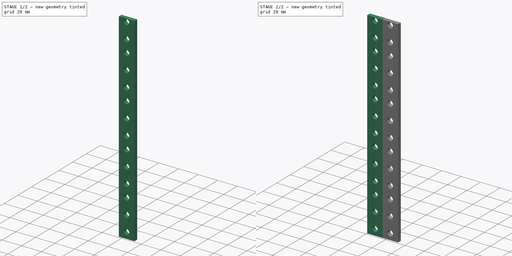
[diagram: build sequence overview — one tinted view per stage of 2, left to right]
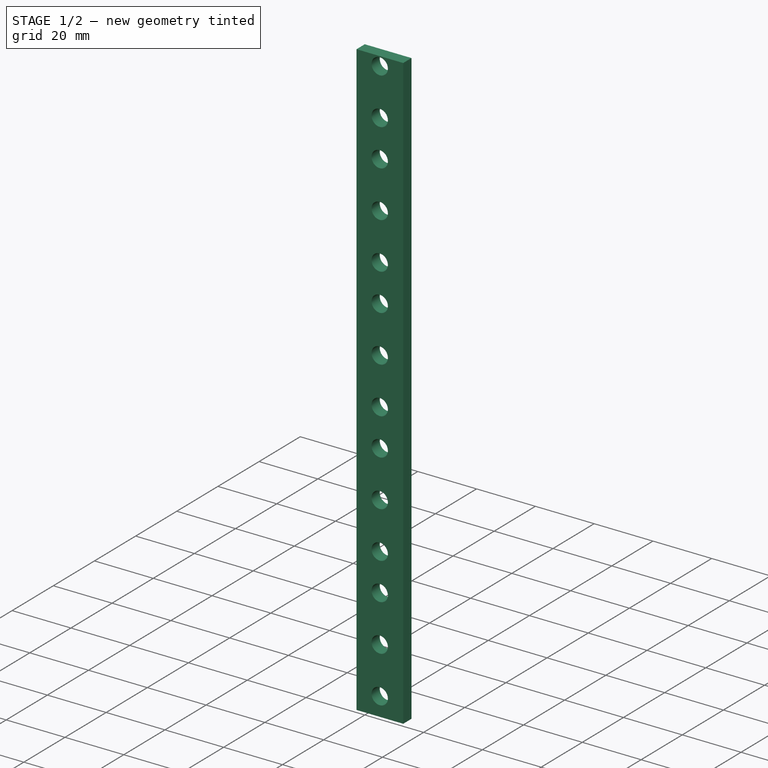
[diagram: stage 1 of 2 — iso view after this stage's code; geometry added in this stage tinted green]
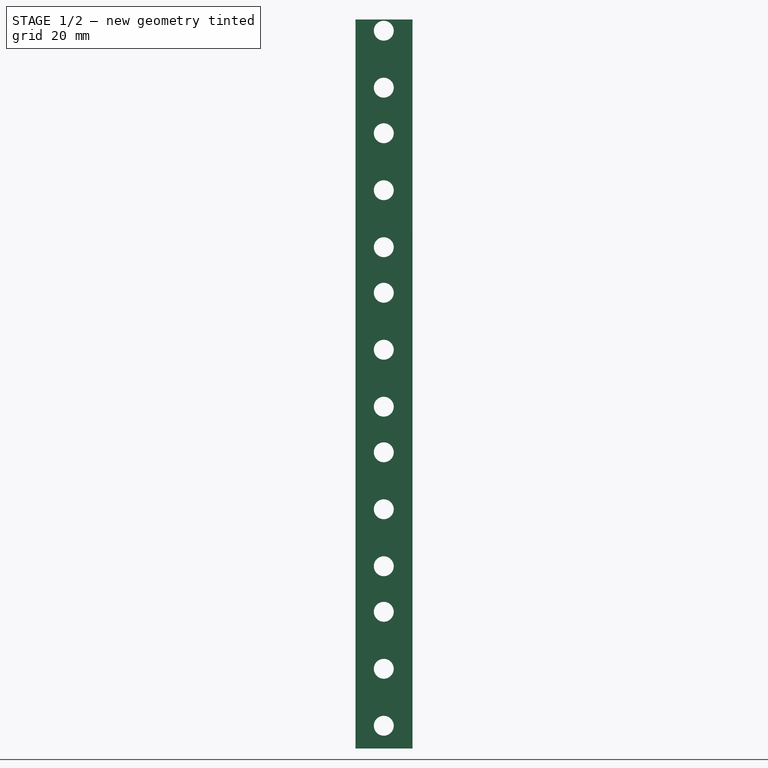
[diagram: stage 1 of 2 — front view after this stage's code; geometry added in this stage tinted green]
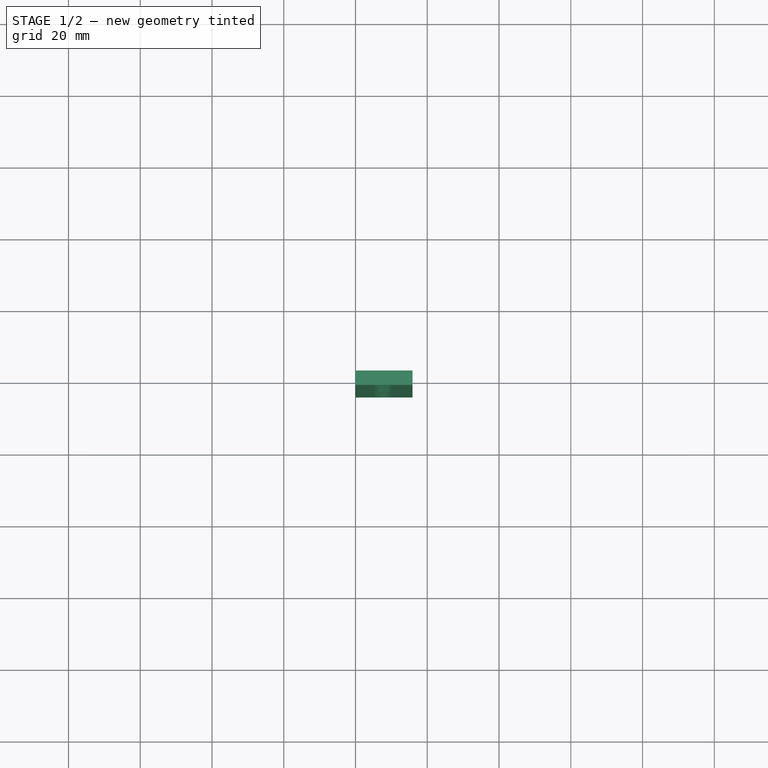
[diagram: stage 1 of 2 — top view after this stage's code; geometry added in this stage tinted green]
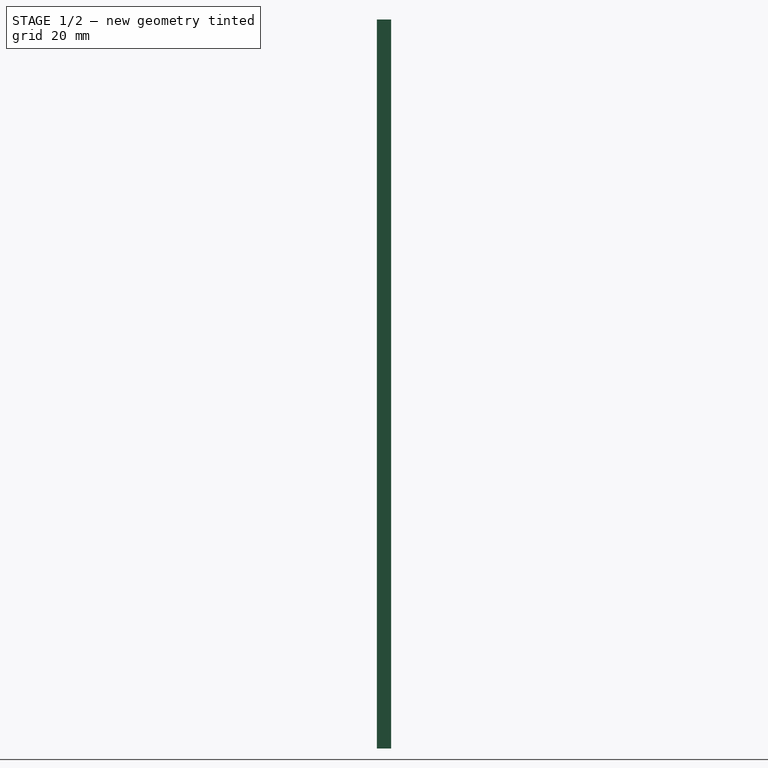
[diagram: stage 1 of 2 — right view after this stage's code; geometry added in this stage tinted green]
FCSTD DOCUMENT  (FreeCAD 0.19R14555 (Git shallow))
Label: 4.5U_DoubleRail_v0
License: All rights reserved
LicenseURL: http://en.wikipedia.org/wiki/All_rights_reserved
objects: Sketcher::SketchObject×2, PartDesign::Pad×2, PartDesign::Body×1
note: 7 computed .brp shape members not serialized (recipe doc carries the construction recipe); baked Part::Feature solids carry a one-line shape summary decoded from their .brp

FEATURE [Sketcher::SketchObject] Sketch
  FullyConstrained = true
  MapMode = 5
  Placement = pos=(0,0,0) rot=(1,0,0;1.5708rad)
  Support = -> [XZ_Plane]
  sketch-geometry (18):
    g0: LineSegment StartX=0 StartY=0 StartZ=0 EndX=15.875 EndY=0 EndZ=0
    g1: LineSegment StartX=15.875 StartY=0 StartZ=0 EndX=15.875 EndY=203.2 EndZ=0
    g2: LineSegment StartX=15.875 StartY=203.2 StartZ=0 EndX=0 EndY=203.2 EndZ=0
    g3: LineSegment StartX=0 StartY=203.2 StartZ=0 EndX=0 EndY=0 EndZ=0
    g4: Circle CenterX=7.874 CenterY=6.35 CenterZ=0 NormalX=0 NormalY=0 NormalZ=1 AngleXU=0 Radius=2.775
    g5: Circle CenterX=7.874 CenterY=22.23 CenterZ=0 NormalX=0 NormalY=0 NormalZ=1 AngleXU=0 Radius=2.775
    g6: Circle CenterX=7.874 CenterY=38.11 CenterZ=0 NormalX=0 NormalY=0 NormalZ=1 AngleXU=0 Radius=2.775
    g7: Circle CenterX=7.874 CenterY=50.81 CenterZ=0 NormalX=0 NormalY=0 NormalZ=1 AngleXU=0 Radius=2.775
    g8: Circle CenterX=7.874 CenterY=66.69 CenterZ=0 NormalX=0 NormalY=0 NormalZ=1 AngleXU=0 Radius=2.775
    g9: Circle CenterX=7.874 CenterY=82.57 CenterZ=0 NormalX=0 NormalY=0 NormalZ=1 AngleXU=0 Radius=2.775
    g10: Circle CenterX=7.874 CenterY=95.27 CenterZ=0 NormalX=0 NormalY=0 NormalZ=1 AngleXU=0 Radius=2.775
    g11: Circle CenterX=7.874 CenterY=111.15 CenterZ=0 NormalX=0 NormalY=0 NormalZ=1 AngleXU=0 Radius=2.775
    g12: Circle CenterX=7.874 CenterY=127.03 CenterZ=0 NormalX=0 NormalY=0 NormalZ=1 AngleXU=0 Radius=2.775
    g13: Circle CenterX=7.874 CenterY=139.73 CenterZ=0 NormalX=0 NormalY=0 NormalZ=1 AngleXU=0 Radius=2.775
    g14: Circle CenterX=7.874 CenterY=155.61 CenterZ=0 NormalX=0 NormalY=0 NormalZ=1 AngleXU=0 Radius=2.775
    g15: Circle CenterX=7.874 CenterY=171.49 CenterZ=0 NormalX=0 NormalY=0 NormalZ=1 AngleXU=0 Radius=2.775
    g16: Circle CenterX=7.874 CenterY=184.19 CenterZ=0 NormalX=0 NormalY=0 NormalZ=1 AngleXU=0 Radius=2.775
    g17: Circle CenterX=7.874 CenterY=200.065 CenterZ=0 NormalX=0 NormalY=0 NormalZ=1 AngleXU=0 Radius=2.775
  constraints (53):
    c: Coincident(g0,g1)
    c: Coincident(g1,g2)
    c: Coincident(g2,g3)
    c: Coincident(g3,g0)
    c: Horizontal(g0)
    c: Horizontal(g2)
    c: Vertical(g1)
    c: Vertical(g3)
    c: Coincident(g0,g-1)
    c: DistanceX(g2,g2) = 15.875
    c: DistanceY(g3,g3) = 203.2
    c: Diameter(g4) = 5.55
    c: DistanceX(g0,g4) = 7.874
    c: DistanceY(g0,g4) = 6.35
    c: Equal(g4,g5) = 5.55
    c: Vertical(g5,g4)
    c: DistanceY(g4,g5) = 15.88
    c: Vertical(g6,g5)
    c: DistanceY(g5,g6) = 15.88
    c: Diameter(g6) = 5.55
    c: Equal(g4,g7) = 5.55
    c: Equal(g7,g8) = 5.55
    c: Vertical(g8,g7)
    c: DistanceY(g7,g8) = 15.88
    c: Vertical(g9,g8)
    c: DistanceY(g8,g9) = 15.88
    c: Equal(g6,g9) = 5.55
    c: DistanceY(g6,g7) = 12.7
    c: Vertical(g6,g7)
    c: Equal(g4,g10) = 5.55
    c: Equal(g10,g11) = 5.55
    c: Vertical(g11,g10)
    c: DistanceY(g10,g11) = 15.88
    c: Vertical(g12,g11)
    c: DistanceY(g11,g12) = 15.88
    c: Equal(g6,g12) = 5.55
    c: Equal(g10,g13) = 5.55
    c: Equal(g13,g14) = 5.55
    c: Vertical(g14,g13)
    c: DistanceY(g13,g14) = 15.88
    c: Vertical(g15,g14)
    c: DistanceY(g14,g15) = 15.88
    c: Equal(g12,g15) = 5.55
    c: DistanceY(g12,g13) = 12.7
    c: Vertical(g12,g13)
    c: DistanceY(g9,g10) = 12.7
    c: Vertical(g9,g10)
    c: Vertical(g15,g16)
    c: DistanceY(g15,g16) = 12.7
    c: Vertical(g16,g17)
    c: DistanceY(g16,g17) = 15.875
    c: Diameter(g16) = 5.55
    c: Diameter(g17) = 5.55
FEATURE [Sketcher::SketchObject] MirroredSketch
  FullyConstrained = false
  Placement = pos=(0,0,0) rot=(1,0,0;1.5708rad)
  sketch-geometry (18):
    g0: LineSegment StartX=0 StartY=0 StartZ=0 EndX=-15.875 EndY=0 EndZ=0
    g1: LineSegment StartX=-15.875 StartY=0 StartZ=0 EndX=-15.875 EndY=203.2 EndZ=0
    g2: LineSegment StartX=-15.875 StartY=203.2 StartZ=0 EndX=0 EndY=203.2 EndZ=0
    g3: LineSegment StartX=0 StartY=203.2 StartZ=0 EndX=0 EndY=0 EndZ=0
    g4: Circle CenterX=-7.874 CenterY=6.35 CenterZ=0 NormalX=0 NormalY=0 NormalZ=1 AngleXU=0 Radius=2.775
    g5: Circle CenterX=-7.874 CenterY=22.23 CenterZ=0 NormalX=0 NormalY=0 NormalZ=1 AngleXU=0 Radius=2.775
    g6: Circle CenterX=-7.874 CenterY=38.11 CenterZ=0 NormalX=0 NormalY=0 NormalZ=1 AngleXU=0 Radius=2.775
    g7: Circle CenterX=-7.874 CenterY=50.81 CenterZ=0 NormalX=0 NormalY=0 NormalZ=1 AngleXU=0 Radius=2.775
    g8: Circle CenterX=-7.874 CenterY=66.69 CenterZ=0 NormalX=0 NormalY=0 NormalZ=1 AngleXU=0 Radius=2.775
    g9: Circle CenterX=-7.874 CenterY=82.57 CenterZ=0 NormalX=0 NormalY=0 NormalZ=1 AngleXU=0 Radius=2.775
    g10: Circle CenterX=-7.874 CenterY=95.27 CenterZ=0 NormalX=0 NormalY=0 NormalZ=1 AngleXU=0 Radius=2.775
    g11: Circle CenterX=-7.874 CenterY=111.15 CenterZ=0 NormalX=0 NormalY=0 NormalZ=1 AngleXU=0 Radius=2.775
    g12: Circle CenterX=-7.874 CenterY=127.03 CenterZ=0 NormalX=0 NormalY=0 NormalZ=1 AngleXU=0 Radius=2.775
    g13: Circle CenterX=-7.874 CenterY=139.73 CenterZ=0 NormalX=0 NormalY=0 NormalZ=1 AngleXU=0 Radius=2.775
    g14: Circle CenterX=-7.874 CenterY=155.61 CenterZ=0 NormalX=0 NormalY=0 NormalZ=1 AngleXU=0 Radius=2.775
    g15: Circle CenterX=-7.874 CenterY=171.49 CenterZ=0 NormalX=0 NormalY=0 NormalZ=1 AngleXU=0 Radius=2.775
    g16: Circle CenterX=-7.874 CenterY=184.19 CenterZ=0 NormalX=0 NormalY=0 NormalZ=1 AngleXU=0 Radius=2.775
    g17: Circle CenterX=-7.874 CenterY=200.065 CenterZ=0 NormalX=0 NormalY=0 NormalZ=1 AngleXU=0 Radius=2.775
  constraints (22):
    c: Coincident(g0,g1)
    c: Coincident(g1,g2)
    c: Coincident(g2,g3)
    c: Coincident(g3,g0)
    c: Horizontal(g0)
    c: Horizontal(g2)
    c: Vertical(g1)
    c: Vertical(g3)
    c: Diameter(g4) = 5.55
    c: Equal(g4,g5) = 5.55
    c: Diameter(g6) = 5.55
    c: Equal(g4,g7) = 5.55
    c: Equal(g7,g8) = 5.55
    c: Equal(g6,g9) = 5.55
    c: Equal(g4,g10) = 5.55
    c: Equal(g10,g11) = 5.55
    c: Equal(g6,g12) = 5.55
    c: Equal(g10,g13) = 5.55
    c: Equal(g13,g14) = 5.55
    c: Equal(g12,g15) = 5.55
    c: Diameter(g16) = 5.55
    c: Diameter(g17) = 5.55
FEATURE [PartDesign::Pad] Pad
  Direction = (1,1,1)
  Length = 4
  Length2 = 100
  Placement = pos=(0,0,0) rot=(1,0,0;1.5708rad)
  Profile = -> Sketch
  Type = 0
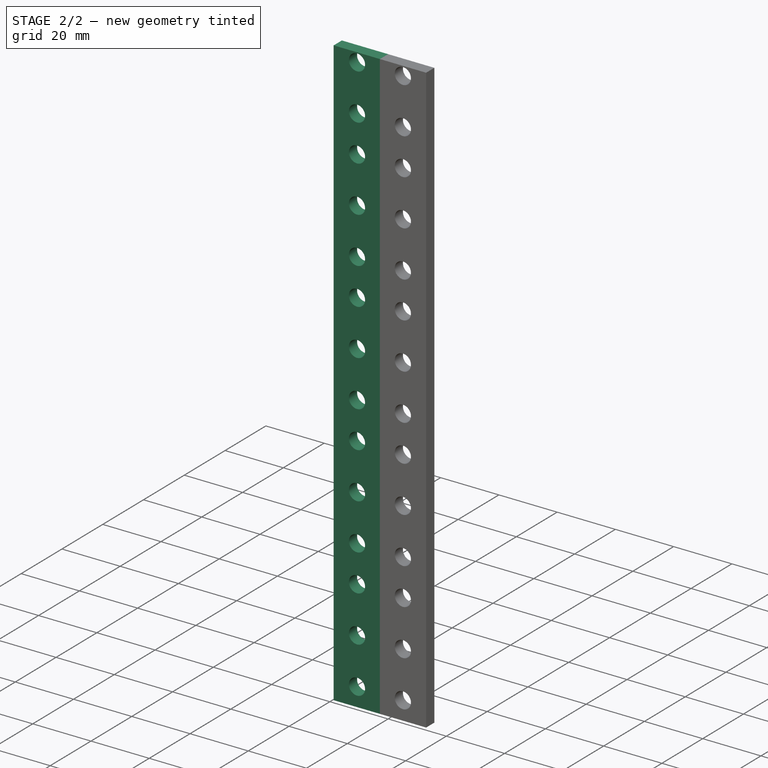
[diagram: stage 2 of 2 — iso view after this stage's code; geometry added in this stage tinted green]
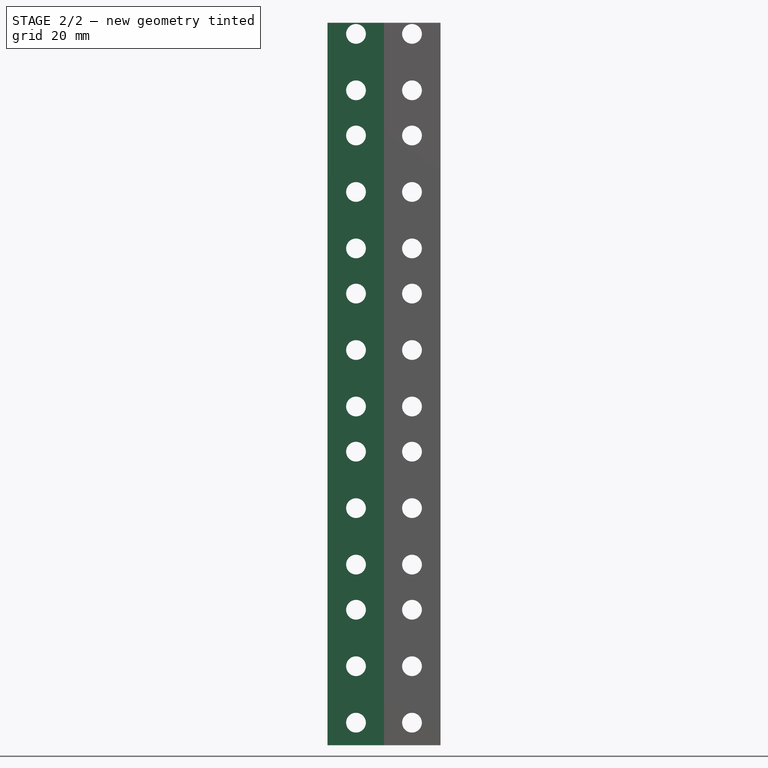
[diagram: stage 2 of 2 — front view after this stage's code; geometry added in this stage tinted green]
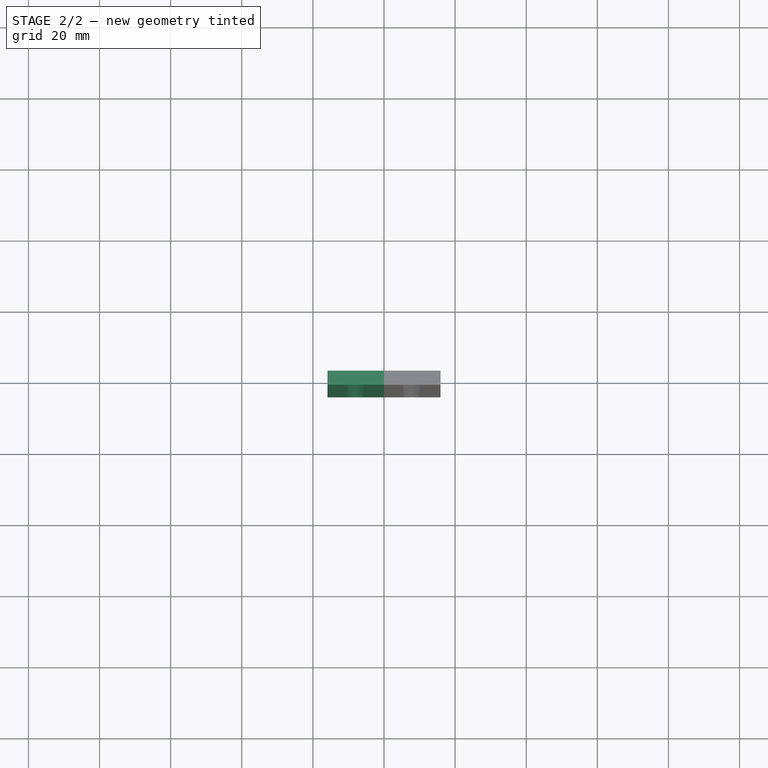
[diagram: stage 2 of 2 — top view after this stage's code; geometry added in this stage tinted green]
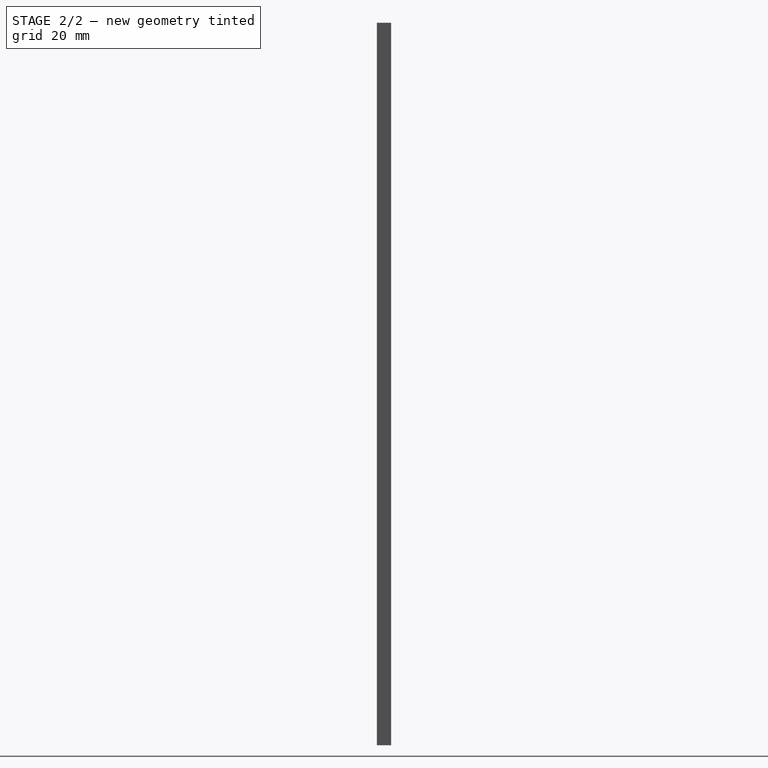
[diagram: stage 2 of 2 — right view after this stage's code; geometry added in this stage tinted green]
FEATURE [PartDesign::Pad] Pad001
  BaseFeature = -> Pad
  Direction = (1,1,1)
  Length = 4
  Length2 = 100
  Placement = pos=(0,0,0) rot=(1,0,0;1.5708rad)
  Profile = -> MirroredSketch
  Type = 0
FEATURE [PartDesign::Body] Body
  Group = -> [Sketch,Pad,MirroredSketch,Pad001]
  Origin = -> Origin
  Tip = -> Pad001
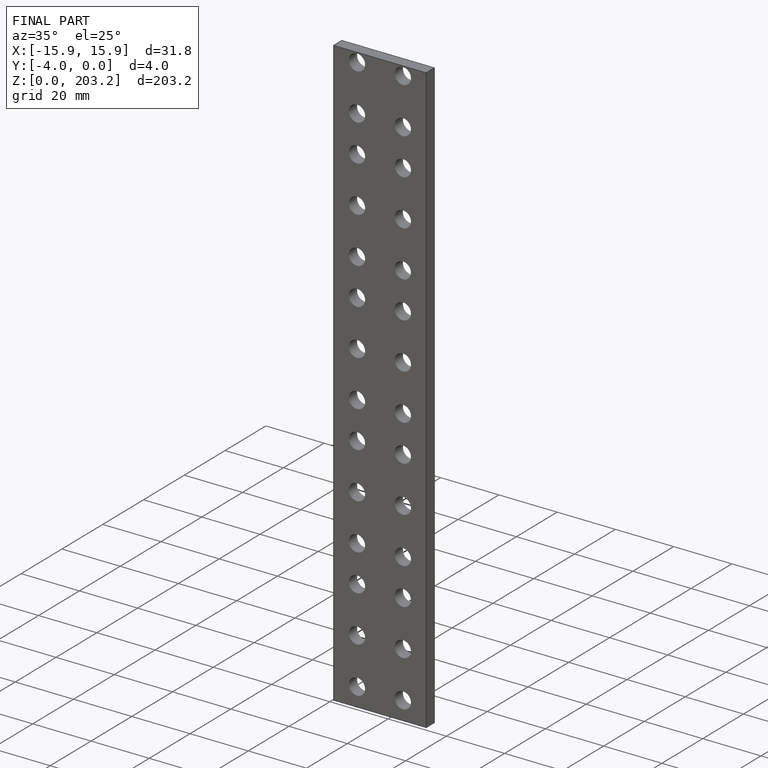
[diagram: finished part — iso view with bounding-box wireframe]
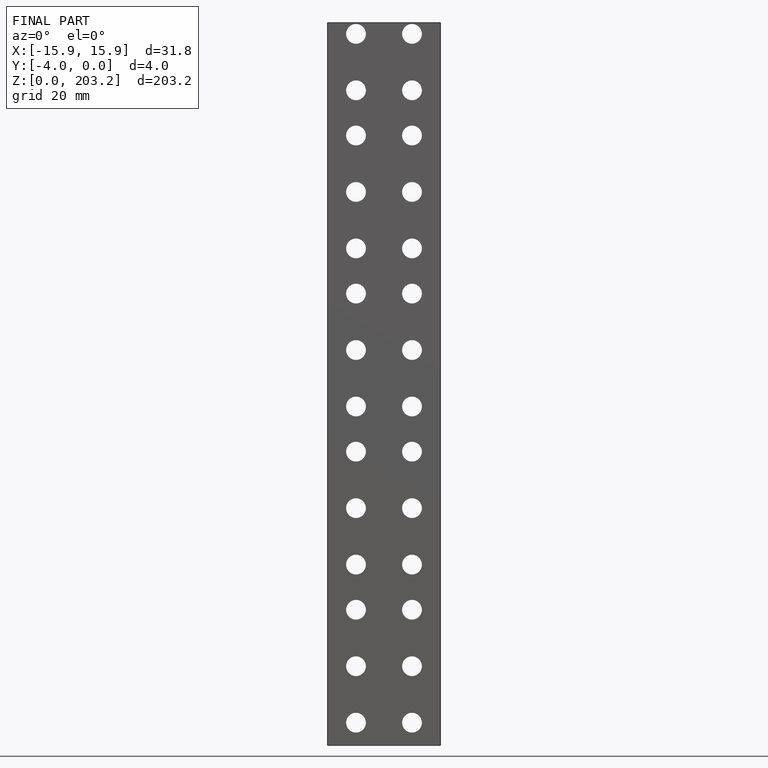
[diagram: finished part — front view with bounding-box wireframe]
